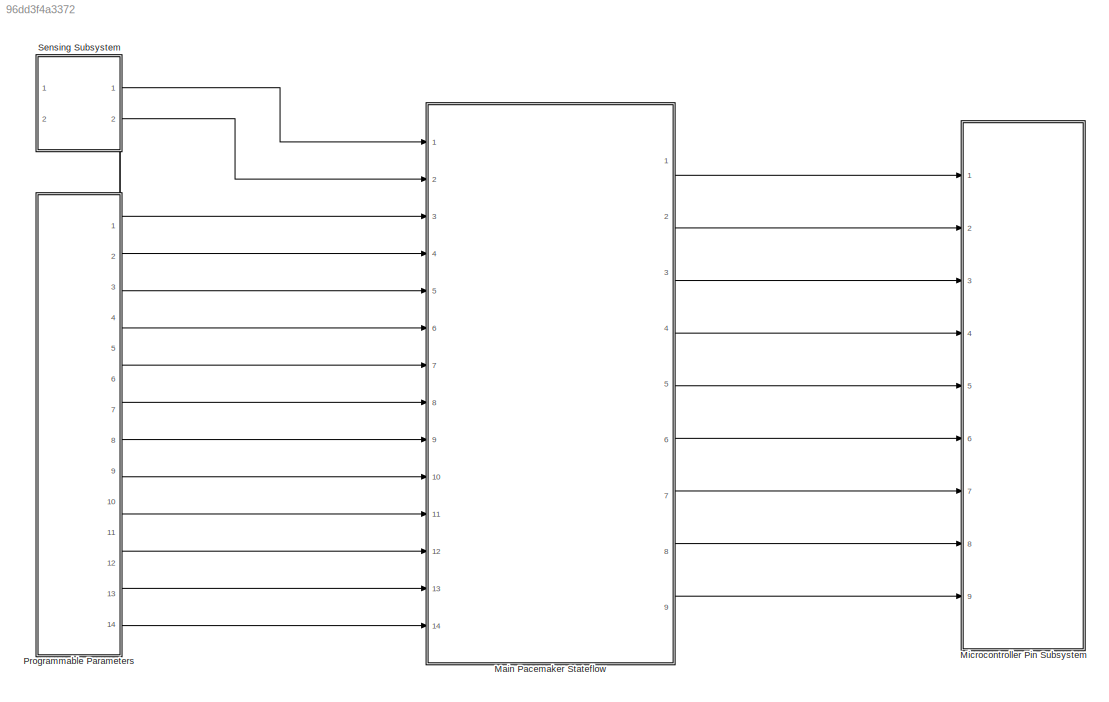
MODEL slx_96dd3f4a3372
KIND model
CONFIG AbsTol = auto
CONFIG EnableMultiTasking = on
CONFIG FixedStep = 1e-3
CONFIG MaxStep = auto
CONFIG MinStep = auto
CONFIG RelTol = 1e-3
CONFIG SampleTimeConstraint = Unconstrained
CONFIG Solver = FixedStepAuto
CONFIG SolverName = FixedStepAuto
CONFIG StartTime = 0.0
CONFIG StopTime = 10
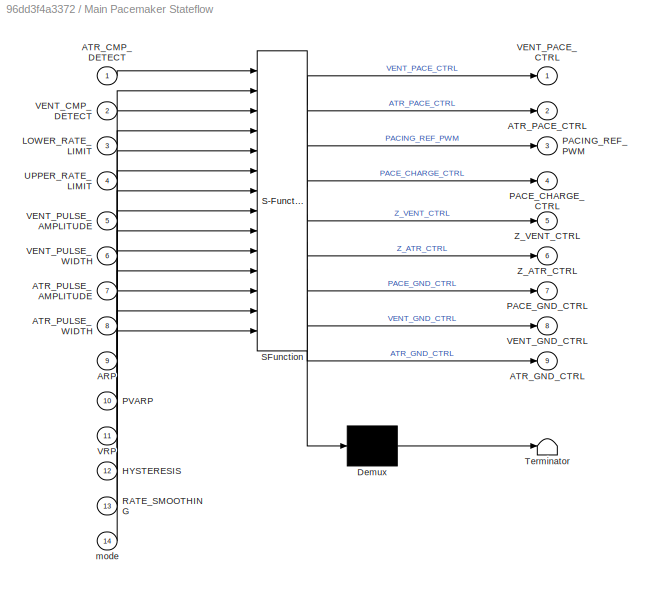
BLOCK [SubSystem] Main Pacemaker Stateflow
  ErrorFcn = Stateflow.Translate.translate
  PermitHierarchicalResolution = ExplicitOnly
  PortSchema = {"entries":[{"content":{"sides":[{"content":{"connectorIds":["In1","In2","In3","In4","In7","In5","In8","In6","In9","In10","In11","In12","In13","In14"]},"type":"ConnectorPlacement.EquallySpacedRectSide","uuid":"e04c6c9d-b568-4760-aae3-37103fc4b8a5"},{"content":{"connectorIds":["Out1","Out2","Out3","Out4","Out5","Out6","Out7","Out8","Out9"],"side":"RIGHT"},"type":"ConnectorPlacement.EquallySpacedRec...<+361ch>
  Ports = [14, 9]
  SFBlockType = Chart
  TreatAsAtomicUnit = on
BLOCK [Demux] Main Pacemaker Stateflow/ Demux 
  Outputs = 1
  Ports = [1, 1]
BLOCK [S-Function] Main Pacemaker Stateflow/ SFunction 
  EnableBusSupport = on
  FunctionName = sf_sfun
  PortCounts = [14 10]
  Ports = [14, 10]
  SFcnIsStateOwnerBlock = off
  SFunctionDeploymentMode = off
  Tag = Stateflow S-Function 3
BLOCK [Terminator] Main Pacemaker Stateflow/ Terminator 
BLOCK [Inport] Main Pacemaker Stateflow/ARP
  Port = 9
BLOCK [Inport] Main Pacemaker Stateflow/ATR_CMP_DETECT
BLOCK [Outport] Main Pacemaker Stateflow/ATR_GND_CTRL
  Port = 9
BLOCK [Outport] Main Pacemaker Stateflow/ATR_PACE_CTRL
  Port = 2
BLOCK [Inport] Main Pacemaker Stateflow/ATR_PULSE_AMPLITUDE
  Port = 7
BLOCK [Inport] Main Pacemaker Stateflow/ATR_PULSE_WIDTH
  Port = 8
BLOCK [Inport] Main Pacemaker Stateflow/HYSTERESIS
  Port = 12
BLOCK [Inport] Main Pacemaker Stateflow/LOWER_RATE_LIMIT
  Port = 3
BLOCK [Outport] Main Pacemaker Stateflow/PACE_CHARGE_CTRL
  Port = 4
BLOCK [Outport] Main Pacemaker Stateflow/PACE_GND_CTRL
  Port = 7
BLOCK [Outport] Main Pacemaker Stateflow/PACING_REF_PWM
  Port = 3
BLOCK [Inport] Main Pacemaker Stateflow/PVARP
  Port = 10
BLOCK [Inport] Main Pacemaker Stateflow/RATE_SMOOTHING
  Port = 13
BLOCK [Inport] Main Pacemaker Stateflow/UPPER_RATE_LIMIT
  Port = 4
BLOCK [Inport] Main Pacemaker Stateflow/VENT_CMP_DETECT
  Port = 2
BLOCK [Outport] Main Pacemaker Stateflow/VENT_GND_CTRL
  Port = 8
BLOCK [Outport] Main Pacemaker Stateflow/VENT_PACE_CTRL
BLOCK [Inport] Main Pacemaker Stateflow/VENT_PULSE_AMPLITUDE
  Port = 5
BLOCK [Inport] Main Pacemaker Stateflow/VENT_PULSE_WIDTH
  Port = 6
BLOCK [Inport] Main Pacemaker Stateflow/VRP
  Port = 11
BLOCK [Outport] Main Pacemaker Stateflow/Z_ATR_CTRL
  Port = 6
BLOCK [Outport] Main Pacemaker Stateflow/Z_VENT_CTRL
  Port = 5
BLOCK [Inport] Main Pacemaker Stateflow/mode
  Port = 14
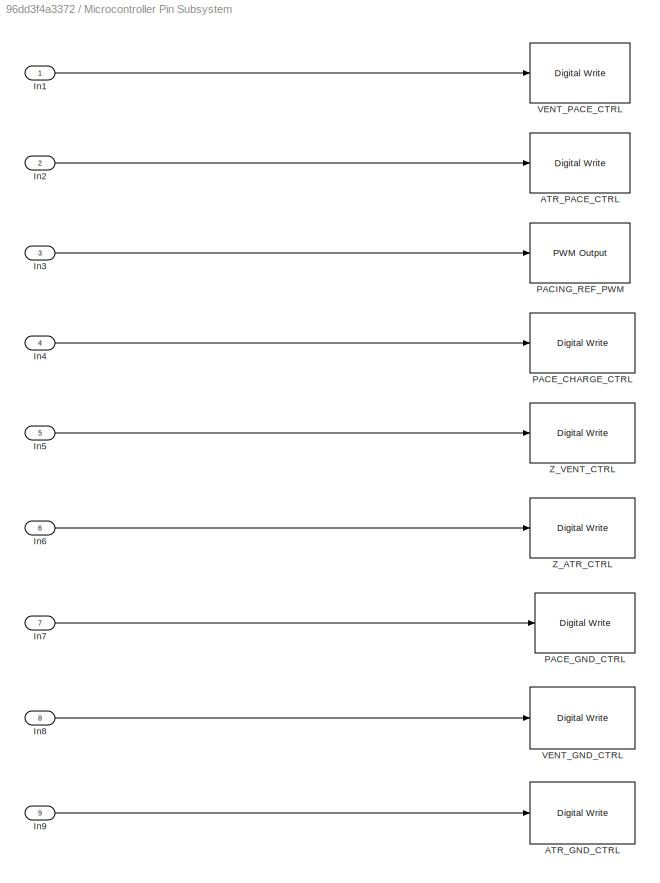
BLOCK [SubSystem] Microcontroller Pin Subsystem
  Ports = [9]
BLOCK [Reference] Microcontroller Pin Subsystem/ATR_GND_CTRL  REF=frdmk64flib/Digital Write
  Ports = [1]
  SourceBlock = frdmk64flib/Digital Write
  SourceType = freedomk64f.DigitalWrite
BLOCK [Reference] Microcontroller Pin Subsystem/ATR_PACE_CTRL  REF=frdmk64flib/Digital Write
  Ports = [1]
  SourceBlock = frdmk64flib/Digital Write
  SourceType = freedomk64f.DigitalWrite
BLOCK [Inport] Microcontroller Pin Subsystem/In1
BLOCK [Inport] Microcontroller Pin Subsystem/In2
  Port = 2
BLOCK [Inport] Microcontroller Pin Subsystem/In3
  Port = 3
BLOCK [Inport] Microcontroller Pin Subsystem/In4
  Port = 4
BLOCK [Inport] Microcontroller Pin Subsystem/In5
  Port = 5
BLOCK [Inport] Microcontroller Pin Subsystem/In6
  Port = 6
BLOCK [Inport] Microcontroller Pin Subsystem/In7
  Port = 7
BLOCK [Inport] Microcontroller Pin Subsystem/In8
  Port = 8
BLOCK [Inport] Microcontroller Pin Subsystem/In9
  Port = 9
BLOCK [Reference] Microcontroller Pin Subsystem/PACE_CHARGE_CTRL  REF=frdmk64flib/Digital Write
  Ports = [1]
  SourceBlock = frdmk64flib/Digital Write
  SourceType = freedomk64f.DigitalWrite
BLOCK [Reference] Microcontroller Pin Subsystem/PACE_GND_CTRL  REF=frdmk64flib/Digital Write
  Ports = [1]
  SourceBlock = frdmk64flib/Digital Write
  SourceType = freedomk64f.DigitalWrite
BLOCK [Reference] Microcontroller Pin Subsystem/PACING_REF_PWM  REF=frdmk64flib/PWM Output
  Ports = [1]
  SourceBlock = frdmk64flib/PWM Output
  SourceType = freedomk64f.PWMOutput
BLOCK [Reference] Microcontroller Pin Subsystem/VENT_GND_CTRL  REF=frdmk64flib/Digital Write
  Ports = [1]
  SourceBlock = frdmk64flib/Digital Write
  SourceType = freedomk64f.DigitalWrite
BLOCK [Reference] Microcontroller Pin Subsystem/VENT_PACE_CTRL  REF=frdmk64flib/Digital Write
  Ports = [1]
  SourceBlock = frdmk64flib/Digital Write
  SourceType = freedomk64f.DigitalWrite
BLOCK [Reference] Microcontroller Pin Subsystem/Z_ATR_CTRL  REF=frdmk64flib/Digital Write
  Ports = [1]
  SourceBlock = frdmk64flib/Digital Write
  SourceType = freedomk64f.DigitalWrite
BLOCK [Reference] Microcontroller Pin Subsystem/Z_VENT_CTRL  REF=frdmk64flib/Digital Write
  Ports = [1]
  SourceBlock = frdmk64flib/Digital Write
  SourceType = freedomk64f.DigitalWrite
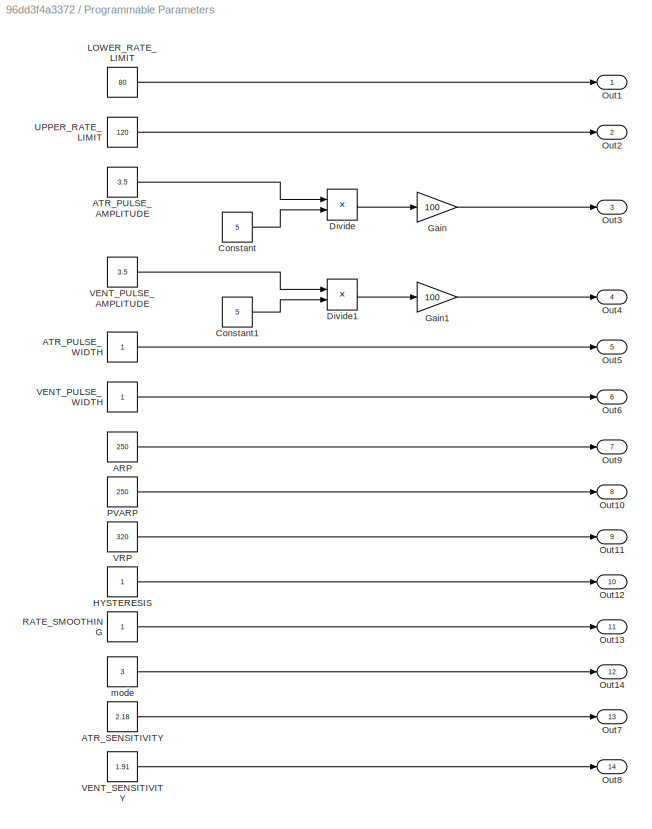
BLOCK [SubSystem] Programmable Parameters
  PortSchema = {"entries":[{"content":{"sides":[{"content":{},"type":"ConnectorPlacement.EquallySpacedRectSide","uuid":"a66c8e23-13e5-4abc-9e09-ab5de47ab8f3"},{"content":{"connectorIds":["Out1","Out2","Out3","Out4","Out5","Out6","Out7","Out8","Out9","Out10","Out11","Out12"],"side":"RIGHT"},"type":"ConnectorPlacement.EquallySpacedRectSide","uuid":"6a9d25ad-44fc-45a2-8267-3a8c58854065"},{"content":{"connectorIds":...<+313ch>
  Ports = [0, 14]
BLOCK [Constant] Programmable Parameters/ARP
  Value = 250
BLOCK [Constant] Programmable Parameters/ATR_PULSE_AMPLITUDE
  Value = 3.5
BLOCK [Constant] Programmable Parameters/ATR_PULSE_WIDTH
BLOCK [Constant] Programmable Parameters/ATR_SENSITIVITY
  Value = 2.18
BLOCK [Constant] Programmable Parameters/Constant
  Value = 5
BLOCK [Constant] Programmable Parameters/Constant1
  Value = 5
BLOCK [Product] Programmable Parameters/Divide
  Inputs = */
  Ports = [2, 1]
BLOCK [Product] Programmable Parameters/Divide1
  Inputs = */
  Ports = [2, 1]
BLOCK [Gain] Programmable Parameters/Gain
  Gain = 100
BLOCK [Gain] Programmable Parameters/Gain1
  Gain = 100
BLOCK [Constant] Programmable Parameters/HYSTERESIS
BLOCK [Constant] Programmable Parameters/LOWER_RATE_LIMIT
  Value = 80
BLOCK [Outport] Programmable Parameters/Out1
BLOCK [Outport] Programmable Parameters/Out10
  Port = 8
BLOCK [Outport] Programmable Parameters/Out11
  Port = 9
BLOCK [Outport] Programmable Parameters/Out12
  Port = 10
BLOCK [Outport] Programmable Parameters/Out13
  Port = 11
BLOCK [Outport] Programmable Parameters/Out14
  Port = 12
BLOCK [Outport] Programmable Parameters/Out2
  Port = 2
BLOCK [Outport] Programmable Parameters/Out3
  Port = 3
BLOCK [Outport] Programmable Parameters/Out4
  Port = 4
BLOCK [Outport] Programmable Parameters/Out5
  Port = 5
BLOCK [Outport] Programmable Parameters/Out6
  Port = 6
BLOCK [Outport] Programmable Parameters/Out7
  Port = 13
BLOCK [Outport] Programmable Parameters/Out8
  Port = 14
BLOCK [Outport] Programmable Parameters/Out9
  Port = 7
BLOCK [Constant] Programmable Parameters/PVARP
  Value = 250
BLOCK [Constant] Programmable Parameters/RATE_SMOOTHING
BLOCK [Constant] Programmable Parameters/UPPER_RATE_LIMIT
  Value = 120
BLOCK [Constant] Programmable Parameters/VENT_PULSE_AMPLITUDE
  Value = 3.5
BLOCK [Constant] Programmable Parameters/VENT_PULSE_WIDTH
BLOCK [Constant] Programmable Parameters/VENT_SENSITIVITY
  Value = 1.91
BLOCK [Constant] Programmable Parameters/VRP
  Value = 320
BLOCK [Constant] Programmable Parameters/mode
  Value = 3
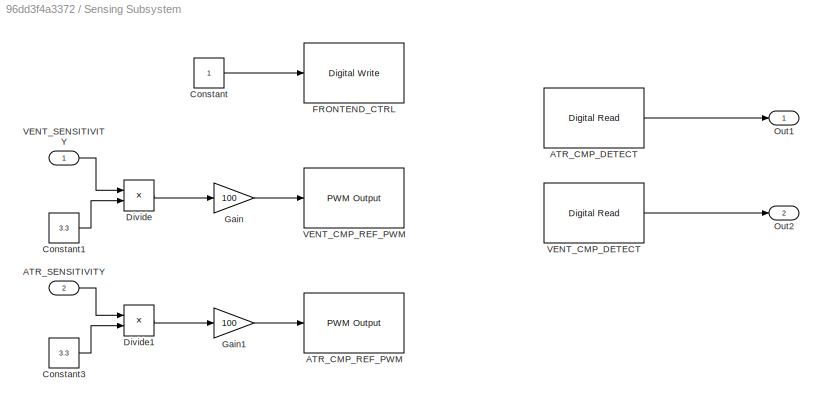
BLOCK [SubSystem] Sensing Subsystem
  NameLocation = top
  PortSchema = {"entries":[{"content":{"sides":[{"content":{},"type":"ConnectorPlacement.EquallySpacedRectSide","uuid":"02e0911b-3253-486a-acb8-f1ba1f788aa5"},{"content":{"connectorIds":["Out1","Out2"],"side":"RIGHT"},"type":"ConnectorPlacement.EquallySpacedRectSide","uuid":"66620bda-3110-4f43-a68e-d3775ac902e4"},{"content":{"side":"TOP"},"type":"ConnectorPlacement.EquallySpacedRectSide","uuid":"5a7389cd-e024-43...<+362ch>
  Ports = [2, 2]
BLOCK [Reference] Sensing Subsystem/ATR_CMP_DETECT  REF=frdmk64flib/Digital Read
  Ports = [0, 1]
  SourceBlock = frdmk64flib/Digital Read
  SourceType = freedomk64f.DigitalRead
BLOCK [Reference] Sensing Subsystem/ATR_CMP_REF_PWM  REF=frdmk64flib/PWM Output
  Ports = [1]
  SourceBlock = frdmk64flib/PWM Output
  SourceType = freedomk64f.PWMOutput
BLOCK [Inport] Sensing Subsystem/ATR_SENSITIVITY
  NameLocation = top
  Port = 2
BLOCK [Constant] Sensing Subsystem/Constant
BLOCK [Constant] Sensing Subsystem/Constant1
  Value = 3.3
BLOCK [Constant] Sensing Subsystem/Constant3
  Value = 3.3
BLOCK [Product] Sensing Subsystem/Divide
  Inputs = */
  Ports = [2, 1]
BLOCK [Product] Sensing Subsystem/Divide1
  Inputs = */
  Ports = [2, 1]
BLOCK [Reference] Sensing Subsystem/FRONTEND_CTRL  REF=frdmk64flib/Digital Write
  Ports = [1]
  SourceBlock = frdmk64flib/Digital Write
  SourceType = freedomk64f.DigitalWrite
BLOCK [Gain] Sensing Subsystem/Gain
  Gain = 100
BLOCK [Gain] Sensing Subsystem/Gain1
  Gain = 100
BLOCK [Outport] Sensing Subsystem/Out1
BLOCK [Outport] Sensing Subsystem/Out2
  Port = 2
BLOCK [Reference] Sensing Subsystem/VENT_CMP_DETECT  REF=frdmk64flib/Digital Read
  Ports = [0, 1]
  SourceBlock = frdmk64flib/Digital Read
  SourceType = freedomk64f.DigitalRead
BLOCK [Reference] Sensing Subsystem/VENT_CMP_REF_PWM  REF=frdmk64flib/PWM Output
  Ports = [1]
  SourceBlock = frdmk64flib/PWM Output
  SourceType = freedomk64f.PWMOutput
BLOCK [Inport] Sensing Subsystem/VENT_SENSITIVITY
  NameLocation = top
LINE Main Pacemaker Stateflow:1 -> Microcontroller Pin Subsystem:1
LINE Main Pacemaker Stateflow:2 -> Microcontroller Pin Subsystem:2
LINE Main Pacemaker Stateflow:3 -> Microcontroller Pin Subsystem:3
LINE Main Pacemaker Stateflow:4 -> Microcontroller Pin Subsystem:4
LINE Main Pacemaker Stateflow:5 -> Microcontroller Pin Subsystem:5
LINE Main Pacemaker Stateflow:6 -> Microcontroller Pin Subsystem:6
LINE Main Pacemaker Stateflow:7 -> Microcontroller Pin Subsystem:7
LINE Main Pacemaker Stateflow:8 -> Microcontroller Pin Subsystem:8
LINE Main Pacemaker Stateflow:9 -> Microcontroller Pin Subsystem:9
LINE Microcontroller Pin Subsystem/In1:1 -> Microcontroller Pin Subsystem/VENT_PACE_CTRL:1
LINE Microcontroller Pin Subsystem/In2:1 -> Microcontroller Pin Subsystem/ATR_PACE_CTRL:1
LINE Microcontroller Pin Subsystem/In3:1 -> Microcontroller Pin Subsystem/PACING_REF_PWM:1
LINE Microcontroller Pin Subsystem/In4:1 -> Microcontroller Pin Subsystem/PACE_CHARGE_CTRL:1
LINE Microcontroller Pin Subsystem/In5:1 -> Microcontroller Pin Subsystem/Z_VENT_CTRL:1
LINE Microcontroller Pin Subsystem/In6:1 -> Microcontroller Pin Subsystem/Z_ATR_CTRL:1
LINE Microcontroller Pin Subsystem/In7:1 -> Microcontroller Pin Subsystem/PACE_GND_CTRL:1
LINE Microcontroller Pin Subsystem/In8:1 -> Microcontroller Pin Subsystem/VENT_GND_CTRL:1
LINE Microcontroller Pin Subsystem/In9:1 -> Microcontroller Pin Subsystem/ATR_GND_CTRL:1
LINE Programmable Parameters/ARP:1 -> Programmable Parameters/Out9:1
LINE Programmable Parameters/ATR_PULSE_AMPLITUDE:1 -> Programmable Parameters/Divide:1
LINE Programmable Parameters/ATR_PULSE_WIDTH:1 -> Programmable Parameters/Out5:1
LINE Programmable Parameters/ATR_SENSITIVITY:1 -> Programmable Parameters/Out7:1
LINE Programmable Parameters/Constant1:1 -> Programmable Parameters/Divide1:2
LINE Programmable Parameters/Constant:1 -> Programmable Parameters/Divide:2
LINE Programmable Parameters/Divide1:1 -> Programmable Parameters/Gain1:1
LINE Programmable Parameters/Divide:1 -> Programmable Parameters/Gain:1
LINE Programmable Parameters/Gain1:1 -> Programmable Parameters/Out4:1
LINE Programmable Parameters/Gain:1 -> Programmable Parameters/Out3:1
LINE Programmable Parameters/HYSTERESIS:1 -> Programmable Parameters/Out12:1
LINE Programmable Parameters/LOWER_RATE_LIMIT:1 -> Programmable Parameters/Out1:1
LINE Programmable Parameters/PVARP:1 -> Programmable Parameters/Out10:1
LINE Programmable Parameters/RATE_SMOOTHING:1 -> Programmable Parameters/Out13:1
LINE Programmable Parameters/UPPER_RATE_LIMIT:1 -> Programmable Parameters/Out2:1
LINE Programmable Parameters/VENT_PULSE_AMPLITUDE:1 -> Programmable Parameters/Divide1:1
LINE Programmable Parameters/VENT_PULSE_WIDTH:1 -> Programmable Parameters/Out6:1
LINE Programmable Parameters/VENT_SENSITIVITY:1 -> Programmable Parameters/Out8:1
LINE Programmable Parameters/VRP:1 -> Programmable Parameters/Out11:1
LINE Programmable Parameters/mode:1 -> Programmable Parameters/Out14:1
LINE Programmable Parameters:1 -> Main Pacemaker Stateflow:3
LINE Programmable Parameters:10 -> Main Pacemaker Stateflow:12
LINE Programmable Parameters:11 -> Main Pacemaker Stateflow:13
LINE Programmable Parameters:12 -> Main Pacemaker Stateflow:14
LINE Programmable Parameters:13 -> Sensing Subsystem:1
LINE Programmable Parameters:14 -> Sensing Subsystem:2
LINE Programmable Parameters:2 -> Main Pacemaker Stateflow:4
LINE Programmable Parameters:3 -> Main Pacemaker Stateflow:7
LINE Programmable Parameters:4 -> Main Pacemaker Stateflow:5
LINE Programmable Parameters:5 -> Main Pacemaker Stateflow:8
LINE Programmable Parameters:6 -> Main Pacemaker Stateflow:6
LINE Programmable Parameters:7 -> Main Pacemaker Stateflow:9
LINE Programmable Parameters:8 -> Main Pacemaker Stateflow:10
LINE Programmable Parameters:9 -> Main Pacemaker Stateflow:11
LINE Sensing Subsystem/ATR_CMP_DETECT:1 -> Sensing Subsystem/Out1:1
LINE Sensing Subsystem/ATR_SENSITIVITY:1 -> Sensing Subsystem/Divide1:1
LINE Sensing Subsystem/Constant1:1 -> Sensing Subsystem/Divide:2
LINE Sensing Subsystem/Constant3:1 -> Sensing Subsystem/Divide1:2
LINE Sensing Subsystem/Constant:1 -> Sensing Subsystem/FRONTEND_CTRL:1
LINE Sensing Subsystem/Divide1:1 -> Sensing Subsystem/Gain1:1
LINE Sensing Subsystem/Divide:1 -> Sensing Subsystem/Gain:1
LINE Sensing Subsystem/Gain1:1 -> Sensing Subsystem/ATR_CMP_REF_PWM:1
LINE Sensing Subsystem/Gain:1 -> Sensing Subsystem/VENT_CMP_REF_PWM:1
LINE Sensing Subsystem/VENT_CMP_DETECT:1 -> Sensing Subsystem/Out2:1
LINE Sensing Subsystem/VENT_SENSITIVITY:1 -> Sensing Subsystem/Divide:1
LINE Sensing Subsystem:1 -> Main Pacemaker Stateflow:1
LINE Sensing Subsystem:2 -> Main Pacemaker Stateflow:2
CHART Main Pacemaker Stateflow states=13 transitions=37
  STATE_LABEL 'Startup'
  STATE_LABEL 'VOO'
  STATE_LABEL 'PACING\n\nentry:\nPACE_CHARGE_CTRL = 0;\nPACE_GND_CTRL = 1;\nATR_PACE_CTRL = 0;\nATR_GND_CTRL = 0;\nZ_ATR_CTRL = 0;\nZ_VENT_CTRL = 0;\nVENT_GND_CTRL = 0;\nVENT_PACE_CTRL = 1;'
  STATE_LABEL 'CHARGING\n\nentry:\n%%Charging C22\nATR_PACE_CTRL = 0;\nVENT_PACE_CTRL = 0;\nPACE_CHARGE_CTRL = 1;\n%%Discharging Blocking Cap\nPACE_GND_CTRL = 1;\nZ_ATR_CTRL = 0;\nZ_VENT_CTRL = 0;\nATR_GND_CTRL = 0;\nVENT_GND_CTRL = 1;\nPACING_REF_PWM = VENT_PULSE_AMPLITUDE;\n'  <repeated x4 — deduplicated; at blocks: Main Pacemaker Stateflow>
  STATE_LABEL '%%Pace Ready\n[after(1/(LOWER_RATE_LIMIT/60000) - VENT_PULSE_WIDTH, msec)]'
  STATE_LABEL '[mode == 1]'
  STATE_LABEL '[mode ~= 1]'
  STATE_LABEL '%%Recharge Ready\n[after(VENT_PULSE_WIDTH, msec)]'
  STATE_LABEL 'PACING\n\nentry:\nPACE_CHARGE_CTRL = 0;\nPACE_GND_CTRL = 1;\nATR_PACE_CTRL = 0;\nATR_GND_CTRL = 0;\nZ_ATR_CTRL = 0;\nZ_VENT_CTRL = 0;\nVENT_GND_CTRL = 0;\nVENT_PACE_CTRL = 1;'
  STATE_LABEL 'AOO'
  STATE_LABEL 'PACING\n\nentry:\nPACE_CHARGE_CTRL = 0;\nPACE_GND_CTRL = 1;\nATR_PACE_CTRL = 1;\nATR_GND_CTRL = 0;\nZ_ATR_CTRL = 0;\nZ_VENT_CTRL = 0;\nVENT_GND_CTRL = 0;\nVENT_PACE_CTRL = 0;'
  STATE_LABEL 'CHARGING\n\nentry:\n%%Charging C22\nATR_PACE_CTRL = 0;\nVENT_PACE_CTRL = 0;\nPACE_CHARGE_CTRL = 1;\n%%Discharging Blocking Cap\nPACE_GND_CTRL = 1;\nZ_ATR_CTRL = 0;\nZ_VENT_CTRL = 0;\nATR_GND_CTRL = 1;\nVENT_GND_CTRL = 0;\nPACING_REF_PWM = ATR_PULSE_AMPLITUDE;\n'  <repeated x3 — deduplicated; at blocks: Main Pacemaker Stateflow>
  STATE_LABEL '%%Pace Ready\n[after(1/(LOWER_RATE_LIMIT/60000) - ATR_PULSE_WIDTH, msec)]'
  STATE_LABEL '[mode == 2]'
  STATE_LABEL '[mode ~= 2]'
  STATE_LABEL '%%Recharge Ready\n[after(ATR_PULSE_WIDTH, msec)]'
  STATE_LABEL 'PACING\n\nentry:\nPACE_CHARGE_CTRL = 0;\nPACE_GND_CTRL = 1;\nATR_PACE_CTRL = 1;\nATR_GND_CTRL = 0;\nZ_ATR_CTRL = 0;\nZ_VENT_CTRL = 0;\nVENT_GND_CTRL = 0;\nVENT_PACE_CTRL = 0;'
  STATE_LABEL 'VVI'
  STATE_LABEL 'PACING\n\nentry:\nPACE_CHARGE_CTRL = 0;\nPACE_GND_CTRL = 1;\nATR_PACE_CTRL = 0;\nATR_GND_CTRL = 0;\nZ_ATR_CTRL = 0;\nZ_VENT_CTRL = 0;\nVENT_GND_CTRL = 0;\nVENT_PACE_CTRL = 1;'
  STATE_LABEL '%%Pace Ready\n[after(1/(LOWER_RATE_LIMIT/60000) - VENT_PULSE_WIDTH - VRP, msec) && VENT_CMP_DETECT == false]'
  STATE_LABEL '[after(VRP, msec)]'
  STATE_LABEL '[VENT_CMP_DETECT == true]'
  STATE_LABEL '[mode == 3]'
  STATE_LABEL '[mode ~= 3]'
  STATE_LABEL '[after(VENT_PULSE_WIDTH, msec)]'
  STATE_LABEL 'PACING\n\nentry:\nPACE_CHARGE_CTRL = 0;\nPACE_GND_CTRL = 1;\nATR_PACE_CTRL = 0;\nATR_GND_CTRL = 0;\nZ_ATR_CTRL = 0;\nZ_VENT_CTRL = 0;\nVENT_GND_CTRL = 0;\nVENT_PACE_CTRL = 1;'
  STATE_LABEL 'AAI'
  STATE_LABEL 'PACING\n\nentry:\nPACE_CHARGE_CTRL = 0;\nPACE_GND_CTRL = 1;\nATR_PACE_CTRL = 1;\nATR_GND_CTRL = 0;\nZ_ATR_CTRL = 0;\nZ_VENT_CTRL = 0;\nVENT_GND_CTRL = 0;\nVENT_PACE_CTRL = 0;'
  STATE_LABEL '%%Pace Ready\n[after(1/(LOWER_RATE_LIMIT/60000) - ATR_PULSE_WIDTH - ARP, msec) && ATR_CMP_DETECT == false]'
  STATE_LABEL '[after(ARP, msec)]'
  STATE_LABEL '[ATR_CMP_DETECT == true]'
  STATE_LABEL '[mode == 4]'
  STATE_LABEL '[mode ~= 4]'
  STATE_LABEL '%%Recharge Ready\n[after(ATR_PULSE_WIDTH, msec)]'
  STATE_LABEL 'PACING\n\nentry:\nPACE_CHARGE_CTRL = 0;\nPACE_GND_CTRL = 1;\nATR_PACE_CTRL = 1;\nATR_GND_CTRL = 0;\nZ_ATR_CTRL = 0;\nZ_VENT_CTRL = 0;\nVENT_GND_CTRL = 0;\nVENT_PACE_CTRL = 0;'
CHART  states=0 transitions=0
